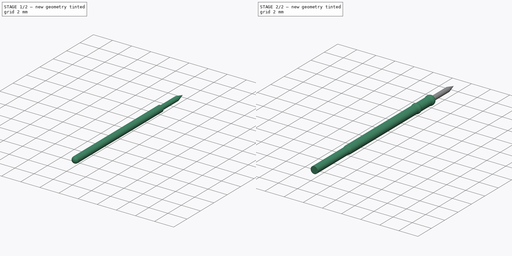
[diagram: build sequence overview — one tinted view per stage of 2, left to right]
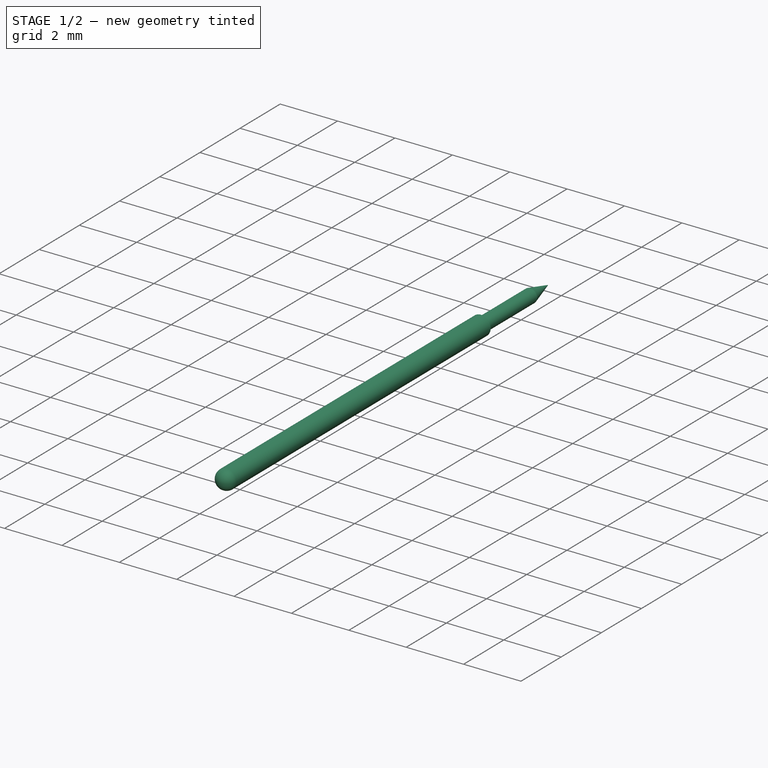
[diagram: stage 1 of 2 — iso view after this stage's code; geometry added in this stage tinted green]
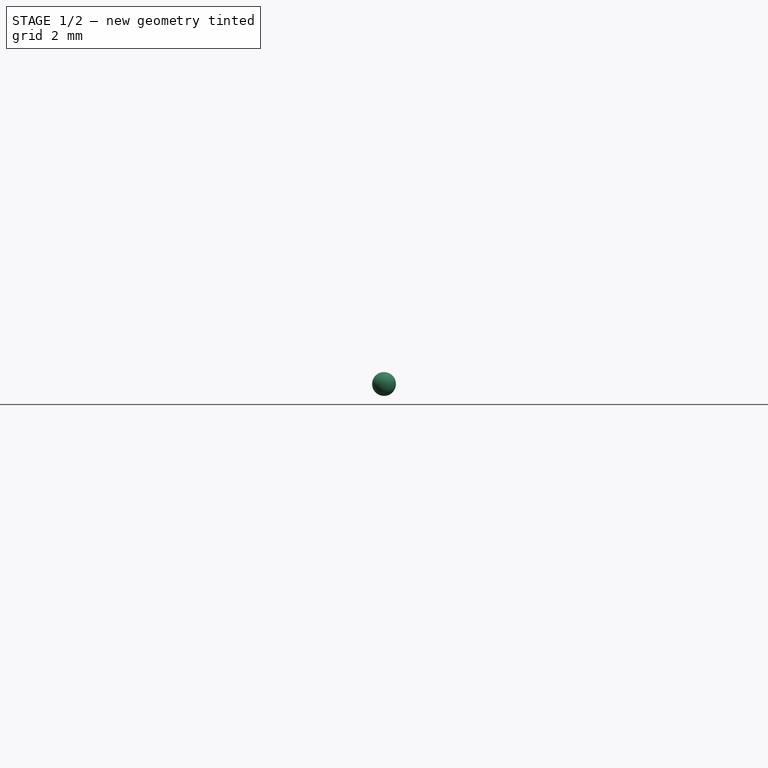
[diagram: stage 1 of 2 — front view after this stage's code; geometry added in this stage tinted green]
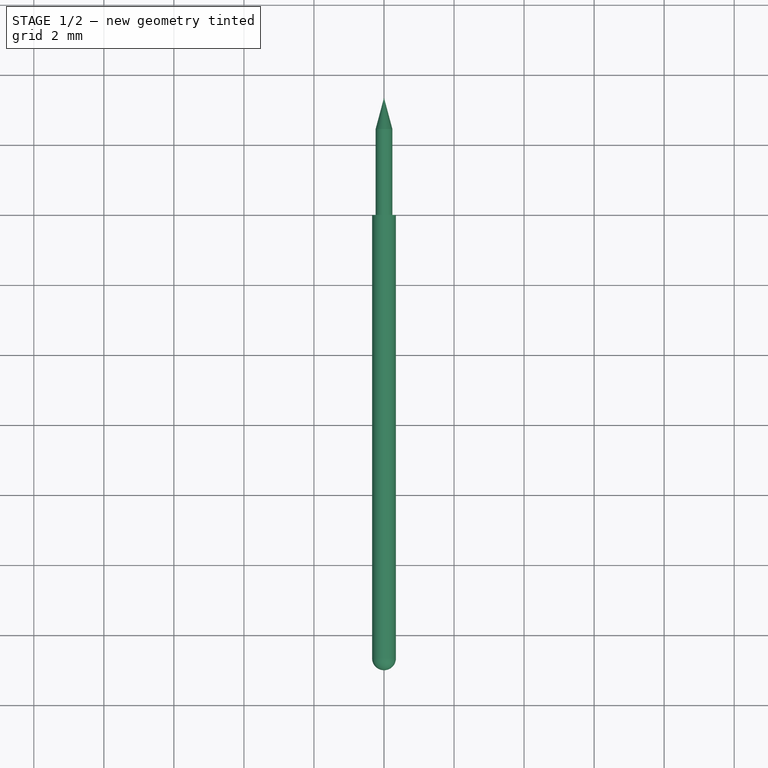
[diagram: stage 1 of 2 — top view after this stage's code; geometry added in this stage tinted green]
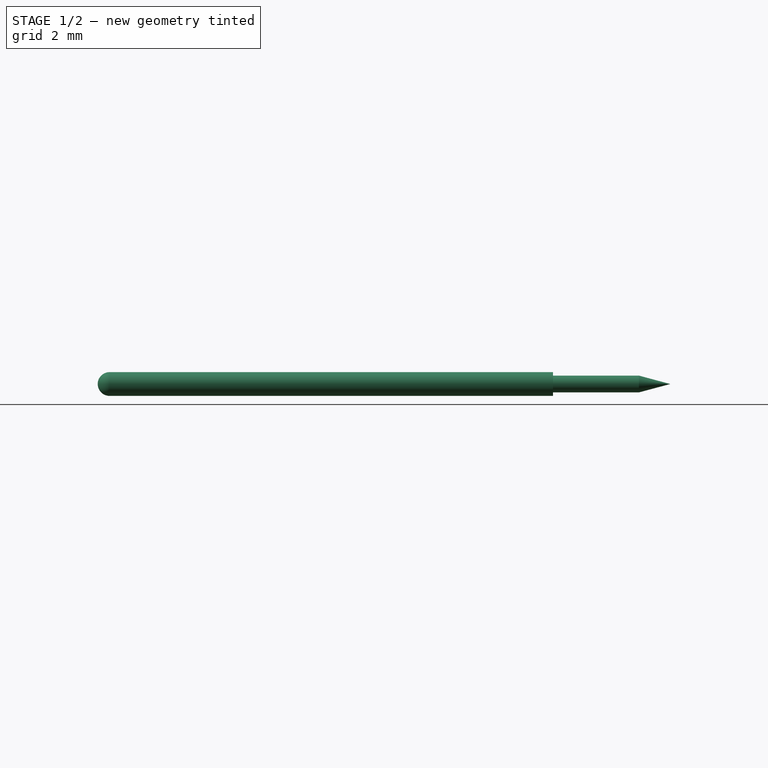
[diagram: stage 1 of 2 — right view after this stage's code; geometry added in this stage tinted green]
FCSTD DOCUMENT  (FreeCAD 0.20R29177 +426 (Git))
Label: P50-B1 + R50-1S
License: All rights reserved
LicenseURL: http://en.wikipedia.org/wiki/All_rights_reserved
objects: Sketcher::SketchObject×3, PartDesign::Revolution×3, PartDesign::Body×1
note: 10 computed .brp shape members not serialized (recipe doc carries the construction recipe); baked Part::Feature solids carry a one-line shape summary decoded from their .brp

FEATURE [Sketcher::SketchObject] Sketch
  FullyConstrained = true
  MapMode = 5
  Support = -> [XY_Plane]
  sketch-geometry (4):
    g0: LineSegment StartX=0 StartY=-3.65 StartZ=0 EndX=0.24 EndY=-3.65 EndZ=0
    g1: LineSegment StartX=0.24 StartY=-3.65 StartZ=0 EndX=0.24 EndY=2.45431 EndZ=0
    g2: LineSegment StartX=0.24 StartY=2.45431 StartZ=0 EndX=0 EndY=3.35 EndZ=0
    g3: LineSegment StartX=0 StartY=3.35 StartZ=0 EndX=0 EndY=-3.65 EndZ=0
  constraints (12):
    c: Coincident(g1,g0)
    c: Vertical(g1)
    c: Coincident(g2,g1)
    c: PointOnObject(g2,g-2)
    c: Coincident(g3,g2)
    c: Coincident(g3,g0)
    c: DistanceY(g3,g3) = 7
    c: DistanceX(g0,g0) = 0.24
    c: Angle(g3,g2) = 0.261799
    c: Vertical(g3)
    c: Horizontal(g0)
    c: DistanceY(g-1,g2) = 3.35
FEATURE [PartDesign::Revolution] Revolution  label="Needle"
  Angle = 360
  Axis = (0,1,0)
  Base = (0,0,0)
  Profile = -> Sketch
  ReferenceAxis = -> Sketch [V_Axis]
  Refine = true
FEATURE [Sketcher::SketchObject] Sketch001
  FullyConstrained = true
  MapMode = 5
  Support = -> [XY_Plane]
  sketch-geometry (4):
    g0: LineSegment StartX=0 StartY=0 StartZ=0 EndX=0.34 EndY=0 EndZ=0
    g1: LineSegment StartX=0.34 StartY=0 StartZ=0 EndX=0.34 EndY=-12.66 EndZ=0
    g2: ArcOfCircle CenterX=0 CenterY=-12.66 CenterZ=0 NormalX=0 NormalY=0 NormalZ=1 AngleXU=0 Radius=0.34 StartAngle=4.71239 EndAngle=6.28319
    g3: LineSegment StartX=-1e-16 StartY=-13 StartZ=0 EndX=0 EndY=0 EndZ=0
  constraints (11):
    c: Coincident(g0,g-1)
    c: PointOnObject(g0,g-1)
    c: Coincident(g1,g0)
    c: Vertical(g1)
    c: PointOnObject(g2,g-2)
    c: PointOnObject(g2,g-2)
    c: DistanceX(g0,g0) = 0.34
    c: Tangent(g2,g1) = 1.5708
    c: DistanceY(g2,g0) = 13
    c: Coincident(g3,g2)
    c: Coincident(g3,g0)
FEATURE [PartDesign::Revolution] Revolution001  label="P50-B1"
  Angle = 360
  Axis = (0,1,0)
  Base = (0,0,0)
  BaseFeature = -> Revolution
  Profile = -> Sketch001
  ReferenceAxis = -> Sketch001 [V_Axis]
  Reversed = true
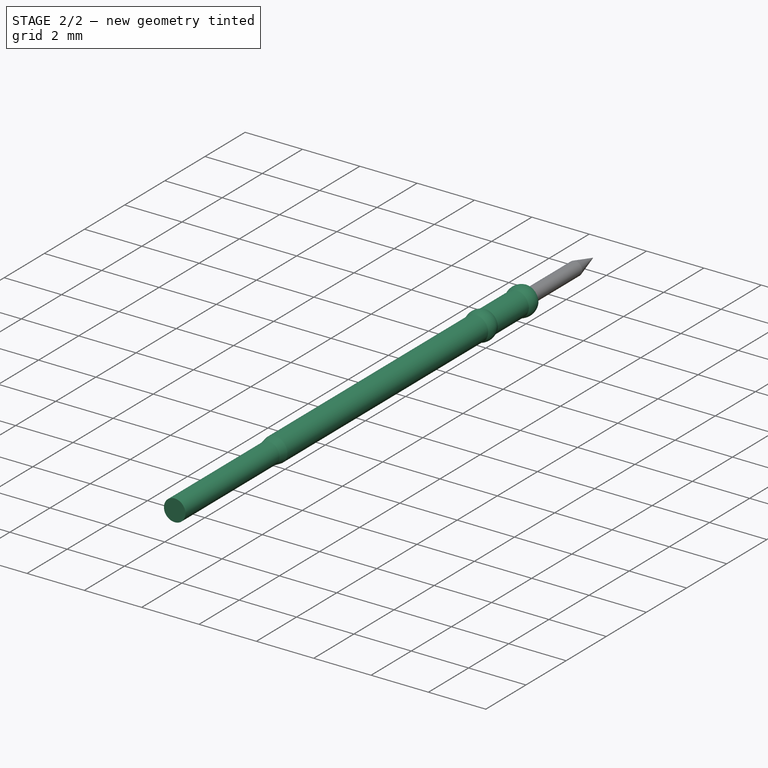
[diagram: stage 2 of 2 — iso view after this stage's code; geometry added in this stage tinted green]
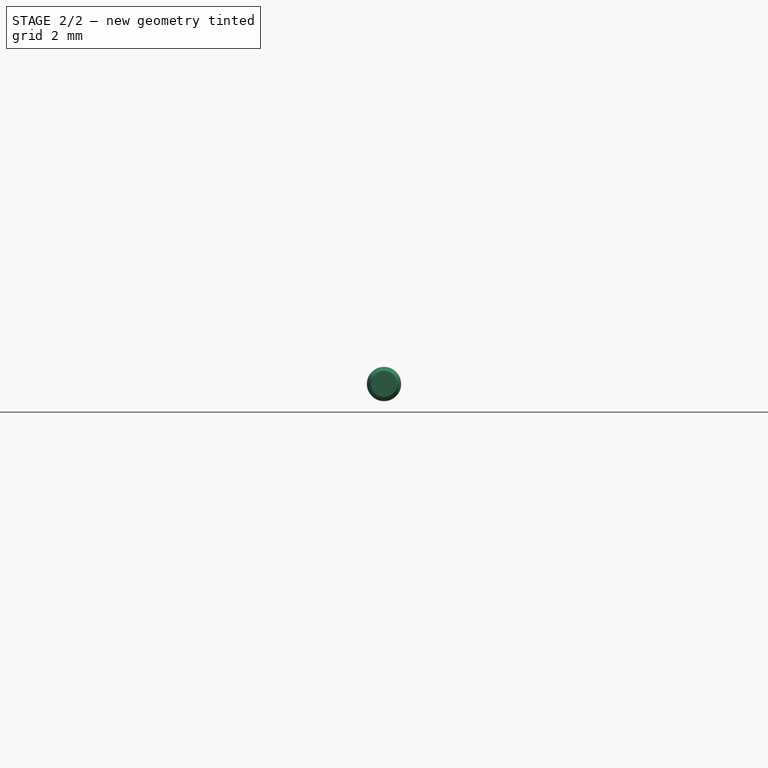
[diagram: stage 2 of 2 — front view after this stage's code; geometry added in this stage tinted green]
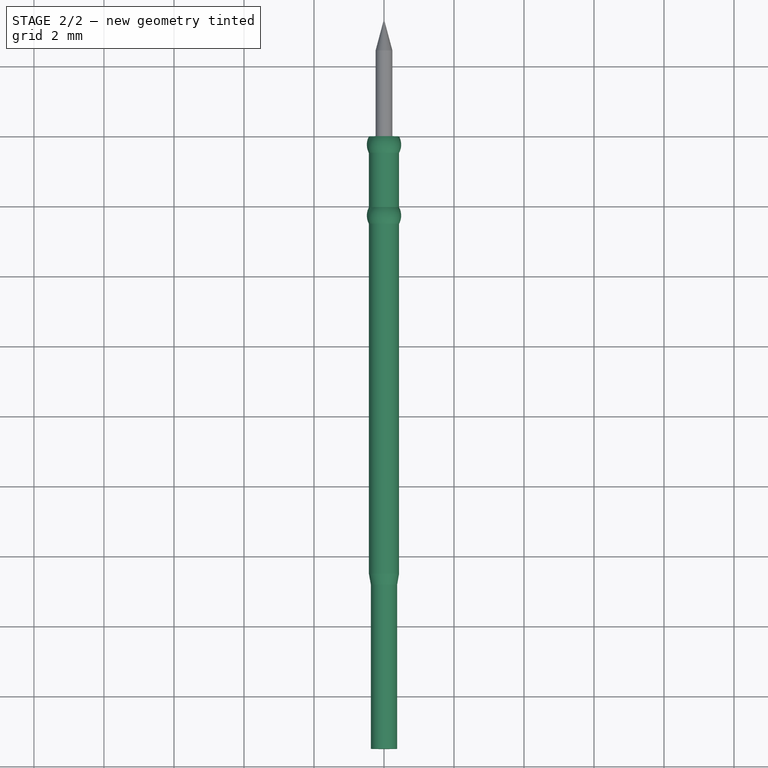
[diagram: stage 2 of 2 — top view after this stage's code; geometry added in this stage tinted green]
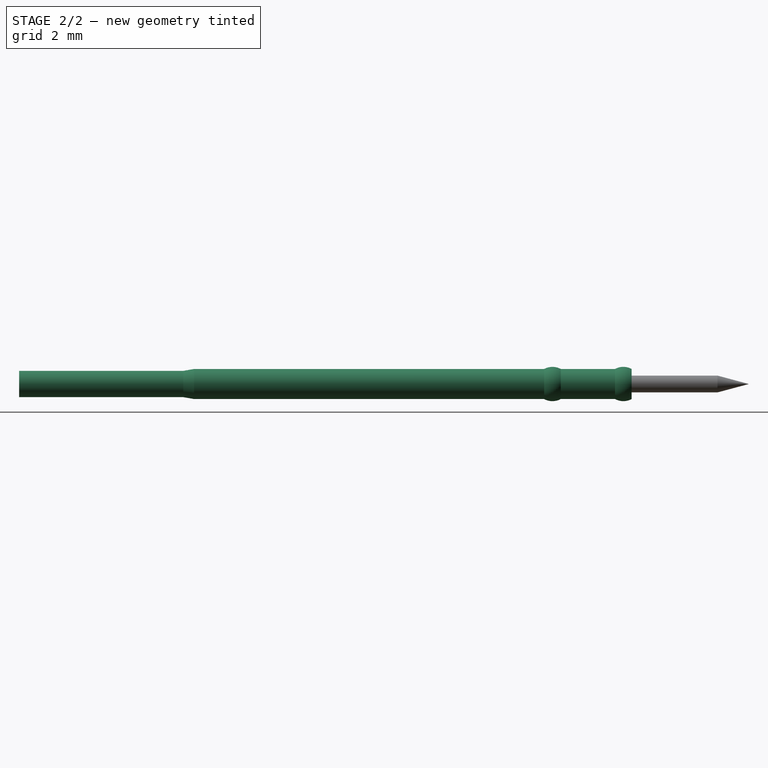
[diagram: stage 2 of 2 — right view after this stage's code; geometry added in this stage tinted green]
FEATURE [Sketcher::SketchObject] Sketch002
  FullyConstrained = true
  MapMode = 5
  Support = -> [XY_Plane]
  sketch-geometry (13):
    g0: LineSegment StartX=0 StartY=0 StartZ=0 EndX=0 EndY=-17.5 EndZ=0
    g1: LineSegment StartX=0 StartY=-17.5 StartZ=0 EndX=0.375 EndY=-17.5 EndZ=0
    g2: LineSegment StartX=0.375 StartY=-17.5 StartZ=0 EndX=0.375 EndY=-12.8119 EndZ=0
    g3: LineSegment StartX=0.375 StartY=-12.8119 StartZ=0 EndX=0.43 EndY=-12.5 EndZ=0
    g4: LineSegment StartX=0.43 StartY=-12.5 StartZ=0 EndX=0.43 EndY=-2.5 EndZ=0
    g5: ArcOfCircle CenterX=-0.01 CenterY=-2.26251 CenterZ=0 NormalX=0 NormalY=0 NormalZ=1 AngleXU=0 Radius=0.5 StartAngle=5.78825 EndAngle=6.77812
    g6: LineSegment StartX=0.43 StartY=-2.02503 StartZ=0 EndX=0.43 EndY=-0.474974 EndZ=0
    g7: ArcOfCircle CenterX=-0.01 CenterY=-0.237487 CenterZ=0 NormalX=0 NormalY=0 NormalZ=1 AngleXU=0 Radius=0.5 StartAngle=5.78825 EndAngle=6.77812
    g8: LineSegment StartX=0.43 StartY=-3.62e-14 StartZ=0 EndX=0 EndY=0 EndZ=0
    g9: LineSegment StartX=0.43 StartY=-0.474974 StartZ=0 EndX=0.43 EndY=-3.62e-14 EndZ=0
    g10: LineSegment StartX=0.43 StartY=-2.02503 StartZ=0 EndX=0.43 EndY=-2.5 EndZ=0
    g11: GeomPoint X=0.43 Y=-2.26251 Z=0
    g12: LineSegment StartX=0.43 StartY=-2.26251 StartZ=0 EndX=0.49 EndY=-2.26251 EndZ=0
  constraints (36):
    c: Coincident(g0,g-1)
    c: PointOnObject(g0,g-2)
    c: Coincident(g1,g0)
    c: Horizontal(g1)
    c: Coincident(g2,g1)
    c: Vertical(g2)
    c: Coincident(g3,g2)
    c: Coincident(g4,g3)
    c: Vertical(g4)
    c: Coincident(g5,g4)
    c: Coincident(g6,g5)
    c: Vertical(g6)
    c: Coincident(g7,g6)
    c: PointOnObject(g7,g-1)
    c: Coincident(g8,g7)
    c: Coincident(g8,g0)
    c: DistanceX(g0,g6) = 0.43
    c: DistanceX(g0,g4) = 0.43
    c: DistanceX(g1,g1) = 0.375
    c: DistanceY(g4,g7) = 2.5
    c: Diameter(g7) = 1
    c: Diameter(g5) = 1
    c: DistanceY(g3,g7) = 12.5
    c: DistanceY(g1,g3) = 5
    c: Angle(g4,g3) = 2.96706
    c: Coincident(g9,g6)
    c: Coincident(g9,g7)
    c: Vertical(g9)
    c: Coincident(g10,g5)
    c: Coincident(g10,g4)
    c: Equal(g9,g10)
    c: Symmetric(g4,g5,g11)
    c: Coincident(g12,g11)
    c: PointOnObject(g12,g5)
    c: Horizontal(g12)
    c: DistanceX(g0,g12) = 0.49
FEATURE [PartDesign::Revolution] Revolution002  label="P50-B1 + R50-1S"
  Angle = 360
  Axis = (0,1,0)
  Base = (0,0,0)
  BaseFeature = -> Revolution001
  Profile = -> Sketch002
  ReferenceAxis = -> Sketch002 [V_Axis]
  Refine = true
  Reversed = true
FEATURE [PartDesign::Body] Body
  Group = -> [Sketch,Revolution,Sketch001,Revolution001,Sketch002,Revolution002]
  Origin = -> Origin
  Tip = -> Revolution002
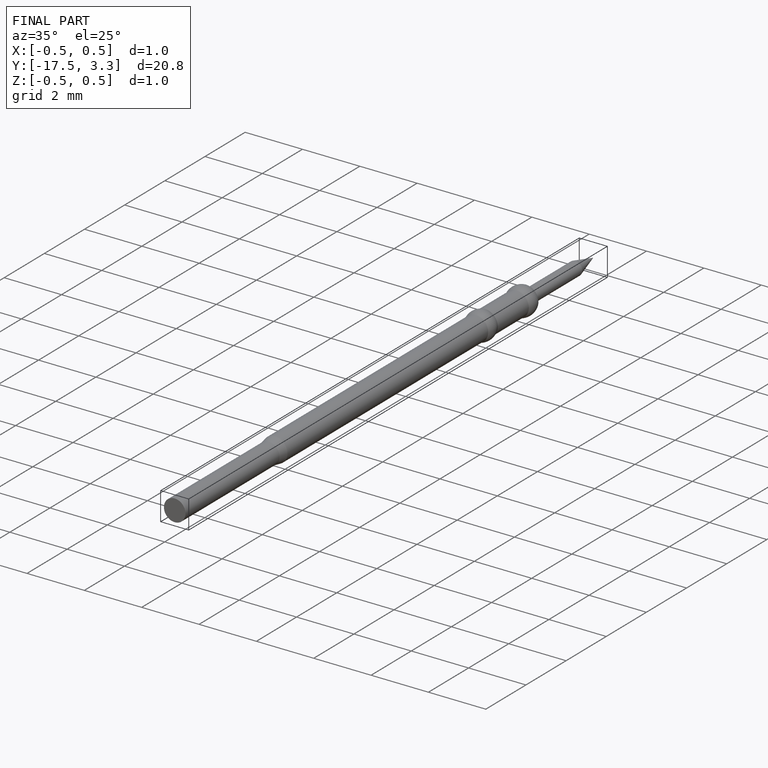
[diagram: finished part — iso view with bounding-box wireframe]
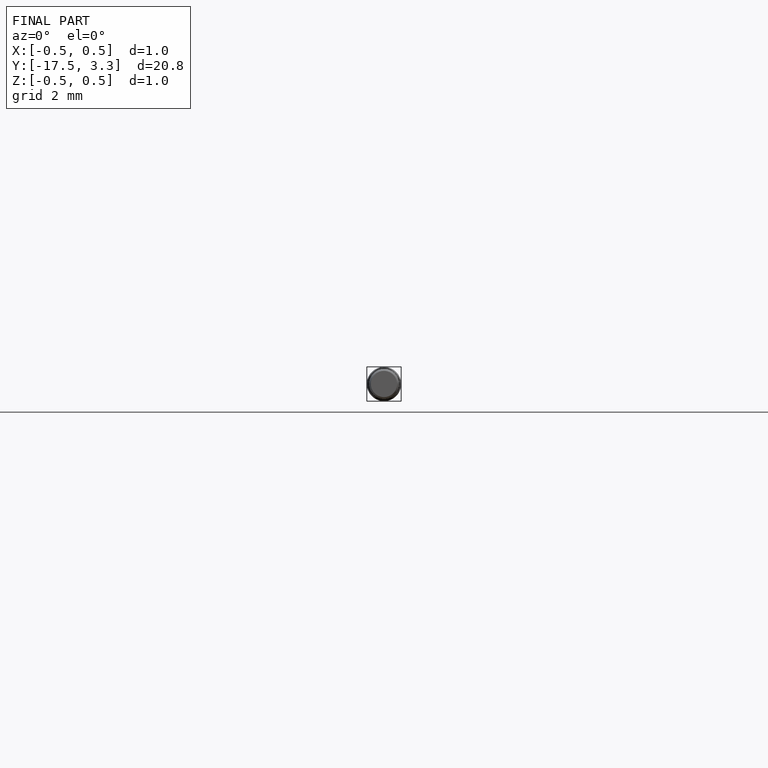
[diagram: finished part — front view with bounding-box wireframe]
